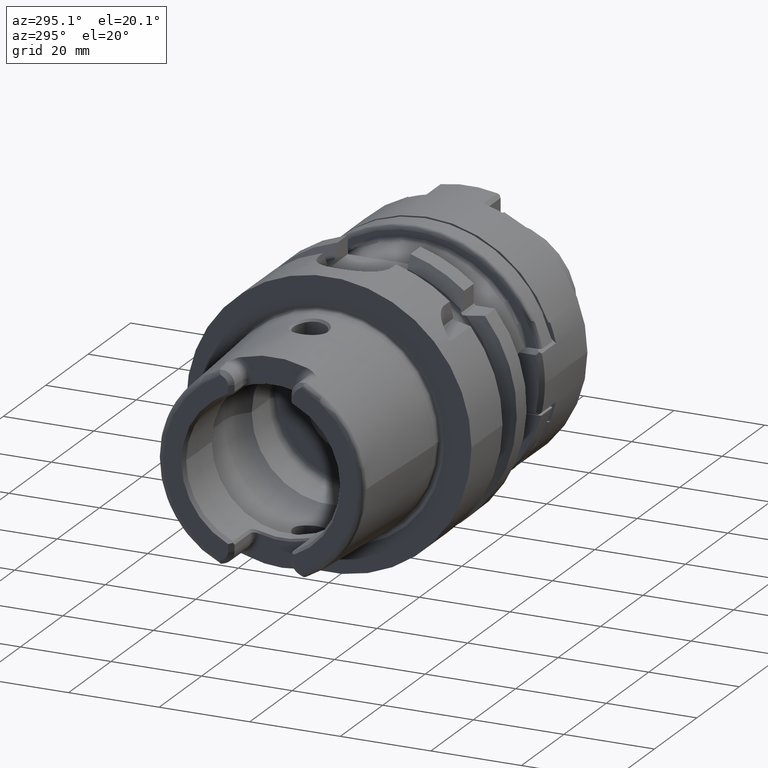
[diagram: clean part render]
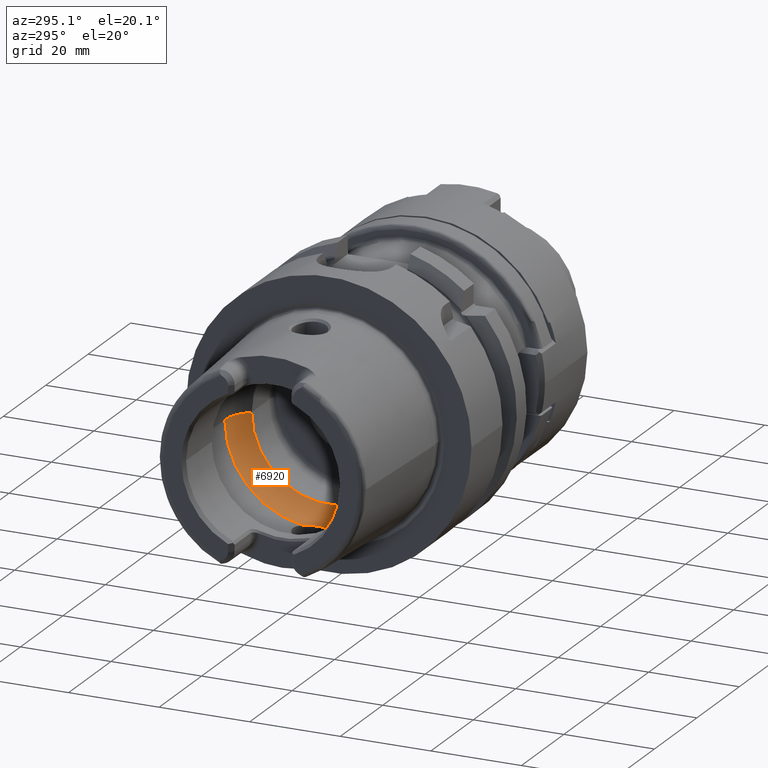
[diagram: same view with one face highlighted and labeled with its STEP entity id]
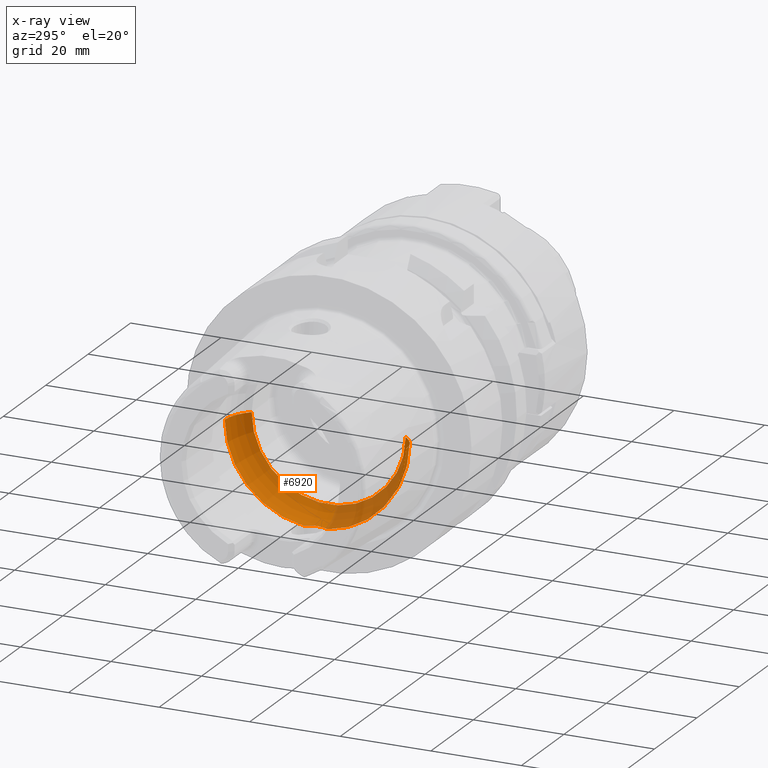
[diagram: x-ray of the same camera — body ghosted, the highlighted face saturated]
A machine part, auxiliary view. The second image highlights one B-rep face of the part: STEP entity #6920.
The next image is the same camera in x-ray: the body ghosted, the highlighted face saturated — about 24% of this face is hidden behind the body in this view.
In plain terms, the highlighted toroidal blend (fillet) surface has major radius 12 mm and minor (blend) radius 8 mm.
Its self-contained STEP definition (entity closure, byte-faithful):
#2824=CARTESIAN_POINT('',(-6.344997998398E0,0.E0,0.E0));
#2825=DIRECTION('',(-1.E0,0.E0,0.E0));
#2826=DIRECTION('',(0.E0,-1.324147307845E-1,-9.911944002421E-1));
#2827=AXIS2_PLACEMENT_3D('',#2824,#2825,#2826);
#2837=CARTESIAN_POINT('',(-6.344997998398E0,0.E0,0.E0));
#2838=DIRECTION('',(-1.E0,0.E0,0.E0));
#2839=DIRECTION('',(0.E0,1.E0,0.E0));
#2840=AXIS2_PLACEMENT_3D('',#2837,#2838,#2839);
#2842=CARTESIAN_POINT('',(-6.344997998398E0,2.648294615690E0,
-1.982388800484E1));
#2843=CARTESIAN_POINT('',(-6.231006837183E0,2.534014746903E0,
-1.983915477598E1));
#2844=CARTESIAN_POINT('',(-6.017025196500E0,2.289847772066E0,
-1.986482090135E1));
#2845=CARTESIAN_POINT('',(-5.744951143506E0,1.883597112482E0,
-1.989126748234E1));
#2846=CARTESIAN_POINT('',(-5.525878619397E0,1.440092942940E0,
-1.990841427492E1));
#2847=CARTESIAN_POINT('',(-5.367928580614E0,9.752961668640E-1,
-1.991846807626E1));
#2848=CARTESIAN_POINT('',(-5.271318281982E0,4.905129038781E-1,
-1.992366853166E1));
#2849=CARTESIAN_POINT('',(-5.25E0,1.634283701959E-1,-1.992470689575E1));
#2850=CARTESIAN_POINT('',(-5.25E0,0.E0,-1.992470689575E1));
#2852=CARTESIAN_POINT('',(-6.344997998398E0,1.2E1,0.E0));
#2853=DIRECTION('',(0.E0,0.E0,1.E0));
#2854=DIRECTION('',(7.806247497998E-1,6.25E-1,0.E0));
#2855=AXIS2_PLACEMENT_3D('',#2852,#2853,#2854);
#2857=CARTESIAN_POINT('',(-1.E-1,0.E0,0.E0));
#2858=DIRECTION('',(-1.E0,0.E0,0.E0));
#2859=DIRECTION('',(0.E0,1.E0,0.E0));
#2860=AXIS2_PLACEMENT_3D('',#2857,#2858,#2859);
#2862=CARTESIAN_POINT('',(-6.344997998398E0,-1.2E1,0.E0));
#2863=DIRECTION('',(0.E0,0.E0,-1.E0));
#2864=DIRECTION('',(7.806247497998E-1,-6.25E-1,0.E0));
#2865=AXIS2_PLACEMENT_3D('',#2862,#2863,#2864);
#2867=CARTESIAN_POINT('',(-5.25E0,0.E0,-1.992470689575E1));
#2868=CARTESIAN_POINT('',(-5.25E0,-1.633406105217E-1,-1.992470689575E1));
#2869=CARTESIAN_POINT('',(-5.271288835069E0,-4.903023440841E-1,
-1.992367004204E1));
#2870=CARTESIAN_POINT('',(-5.367909615515E0,-9.752378390196E-1,
-1.991846919896E1));
#2871=CARTESIAN_POINT('',(-5.525833514658E0,-1.439976302563E0,
-1.990841729053E1));
#2872=CARTESIAN_POINT('',(-5.744910891080E0,-1.883544144465E0,
-1.989127157512E1));
#2873=CARTESIAN_POINT('',(-6.017104191130E0,-2.289956477197E0,
-1.986481279983E1));
#2874=CARTESIAN_POINT('',(-6.231050600033E0,-2.534058620591E0,
-1.983914891484E1));
#2875=CARTESIAN_POINT('',(-6.344997998398E0,-2.648294615690E0,
-1.982388800484E1));
#3131=CARTESIAN_POINT('',(-1.E-1,1.7E1,0.E0));
#3132=VERTEX_POINT('',#3131);
#3133=CARTESIAN_POINT('',(-6.344997998398E0,2.E1,0.E0));
#3134=VERTEX_POINT('',#3133);
#3143=CARTESIAN_POINT('',(-1.E-1,-1.7E1,0.E0));
#3144=VERTEX_POINT('',#3143);
#3145=CARTESIAN_POINT('',(-6.344997998398E0,-2.E1,0.E0));
#3146=VERTEX_POINT('',#3145);
#3318=VERTEX_POINT('',#2842);
#3319=VERTEX_POINT('',#2850);
#3320=VERTEX_POINT('',#2875);
#6905=CARTESIAN_POINT('',(-6.344997998398E0,0.E0,0.E0));
#6906=DIRECTION('',(1.E0,0.E0,0.E0));
#6907=DIRECTION('',(0.E0,-1.E0,0.E0));
#6908=AXIS2_PLACEMENT_3D('',#6905,#6906,#6907);
#6909=TOROIDAL_SURFACE('',#6908,1.2E1,8.E0);
#6910=ORIENTED_EDGE('',*,*,#6843,.F.);
#6911=ORIENTED_EDGE('',*,*,#6900,.F.);
#6912=ORIENTED_EDGE('',*,*,#6862,.F.);
#6914=ORIENTED_EDGE('',*,*,#6913,.T.);
#6915=ORIENTED_EDGE('',*,*,#6858,.T.);
#6916=ORIENTED_EDGE('',*,*,#6894,.F.);
#6917=ORIENTED_EDGE('',*,*,#6607,.F.);
#6918=EDGE_LOOP('',(#6910,#6911,#6912,#6914,#6915,#6916,#6917));
#6919=FACE_OUTER_BOUND('',#6918,.F.);
#6920=ADVANCED_FACE('',(#6919),#6909,.F.);
#2828=CIRCLE('',#2827,2.E1);
#2841=CIRCLE('',#2840,2.E1);
#2851=B_SPLINE_CURVE_WITH_KNOTS('',3,(#2842,#2843,#2844,#2845,#2846,#2847,#2848,
#2849,#2850),.UNSPECIFIED.,.F.,.F.,(4,1,1,1,1,1,4),(0.E0,1.666666666667E-1,
3.333333333333E-1,5.E-1,6.666666666667E-1,8.333333333333E-1,1.E0),
.UNSPECIFIED.);
#2856=CIRCLE('',#2855,8.E0);
#2861=CIRCLE('',#2860,1.7E1);
#2866=CIRCLE('',#2865,8.E0);
#2876=B_SPLINE_CURVE_WITH_KNOTS('',3,(#2867,#2868,#2869,#2870,#2871,#2872,#2873,
#2874,#2875),.UNSPECIFIED.,.F.,.F.,(4,1,1,1,1,1,4),(0.E0,1.666666666667E-1,
3.333333333333E-1,5.E-1,6.666666666667E-1,8.333333333333E-1,1.E0),
.UNSPECIFIED.);
#6607=EDGE_CURVE('',#3319,#3320,#2876,.T.);
#6843=EDGE_CURVE('',#3318,#3319,#2851,.T.);
#6858=EDGE_CURVE('',#3144,#3146,#2866,.T.);
#6862=EDGE_CURVE('',#3132,#3134,#2856,.T.);
#6894=EDGE_CURVE('',#3320,#3146,#2828,.T.);
#6900=EDGE_CURVE('',#3134,#3318,#2841,.T.);
#6913=EDGE_CURVE('',#3132,#3144,#2861,.T.);